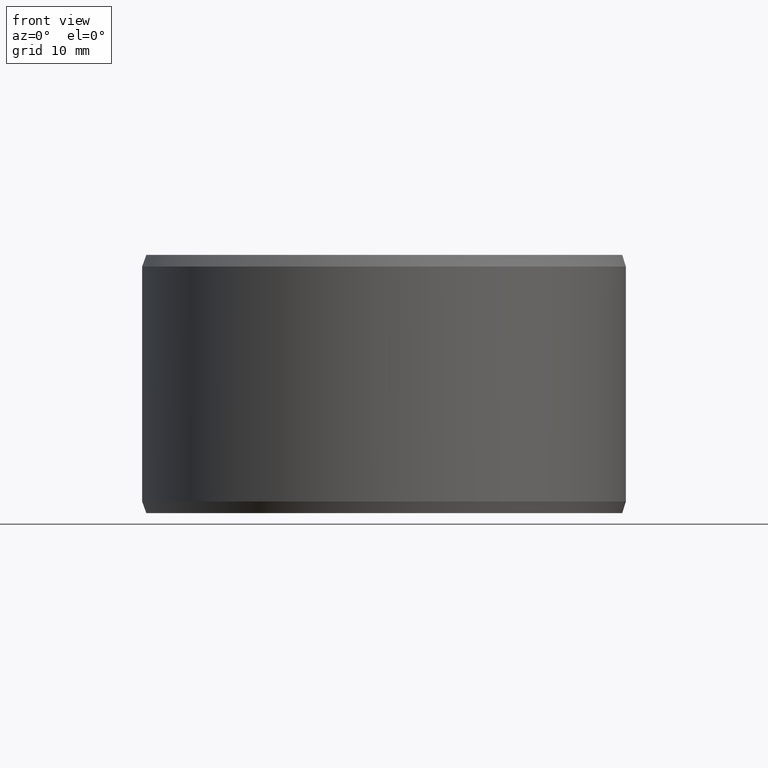
[diagram: clean part render]
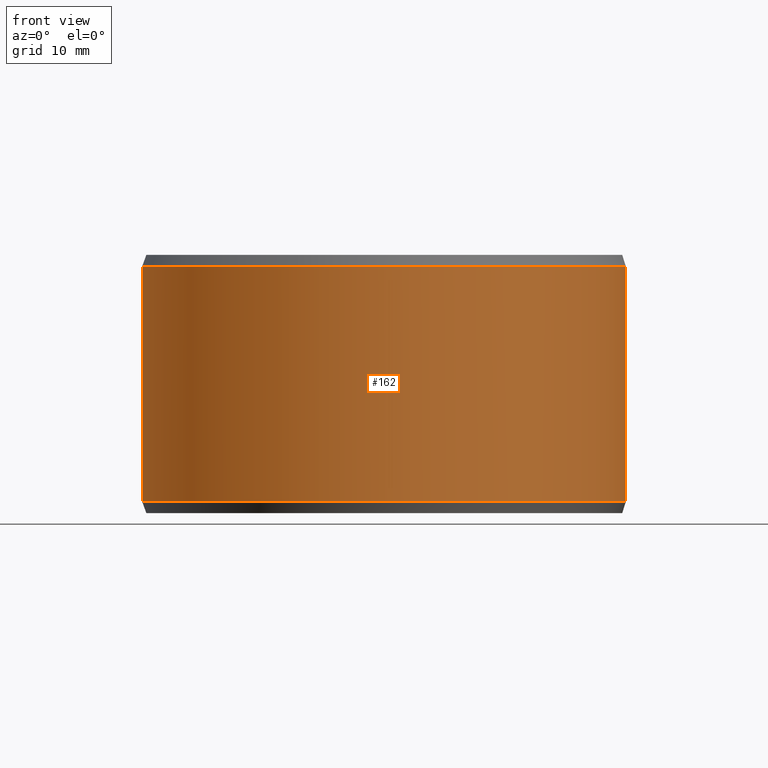
[diagram: same view with one face highlighted and labeled with its STEP entity id]
A machine part, front view. The second image highlights one B-rep face of the part: STEP entity #162.
In plain terms, the highlighted cylindrical surface (partial cylindrical patch) has radius 37.5 mm, axis along (-0, 0, -1).
Its self-contained STEP definition (entity closure, byte-faithful):
#162=ADVANCED_FACE('',(#185,#186),#187,.T.);
#185=FACE_OUTER_BOUND('',#211,.T.);
#186=FACE_BOUND('',#212,.T.);
#187=CYLINDRICAL_SURFACE('',#213,0.0375);
#211=EDGE_LOOP('',(#289,#290,#291,#292));
#212=EDGE_LOOP('',(#293));
#213=AXIS2_PLACEMENT_3D('',#294,#295,#296);
#289=ORIENTED_EDGE('',*,*,#314,.T.);
#290=ORIENTED_EDGE('',*,*,#323,.F.);
#291=ORIENTED_EDGE('',*,*,#309,.F.);
#292=ORIENTED_EDGE('',*,*,#324,.T.);
#293=ORIENTED_EDGE('',*,*,#327,.T.);
#294=CARTESIAN_POINT('',(-6.93889390390723E-018,-6.93889390390723E-018,0.0));
#295=DIRECTION('',(6.12323399573677E-017,0.0,-1.0));
#296=DIRECTION('',(-1.0,0.0,-6.12323399573677E-017));
#309=EDGE_CURVE('',#341,#342,#343,.T.);
#314=EDGE_CURVE('',#351,#349,#352,.T.);
#323=EDGE_CURVE('',#342,#349,#365,.T.);
#324=EDGE_CURVE('',#341,#351,#366,.T.);
#327=EDGE_CURVE('',#370,#370,#371,.T.);
#341=VERTEX_POINT('',#389);
#342=VERTEX_POINT('',#390);
#343=CIRCLE('',#391,0.0375);
#349=VERTEX_POINT('',#399);
#351=VERTEX_POINT('',#402);
#352=CIRCLE('',#403,0.0375);
#365=LINE('',#422,#423);
#366=LINE('',#424,#425);
#370=VERTEX_POINT('',#495);
#371=B_SPLINE_CURVE_WITH_KNOTS('',3,(#496,#497,#498,#499,#500,#501,#502,#503,#504,#505,#506,#507,#508,#509,#510,#511,#512,#513,#514,#515,#516,#517,#518,#519,#520,#521,#522,#523,#524,#525,#526,#527,#528,#529,#530,#531,#532,#533,#534,#535,#536,#537,#538,#539,#540,#541,#542,#543,#544,#545,#546,#547,#548,#549,#550,#551,#552,#553,#554,#555,#556,#557,#558,#559,#560,#561),.UNSPECIFIED.,.T.,.F.,(2,2,2,2,2,2,2,2,2,2,2,2,2,2,2,2,2,2,2,2,2,2,2,2,2,2,2,2,2,2,2,2,2,2,2),(-0.000782077601824386,0.0,0.000782077601824386,0.00156415520364877,0.00234623280547316,0.00312831040729754,0.00391038800912193,0.00469246561094632,0.0054745432127707,0.00625662081459509,0.00703869841641948,0.00782077601824386,0.00860285362006825,0.00938493122189263,0.010167008823717,0.0109490864255414,0.0117311640273658,0.0125132416291902,0.0132953192310146,0.014077396832839,0.0148594744346633,0.0156415520364877,0.0164236296383121,0.0172057072401365,0.0179877848419609,0.0187698624437853,0.0195519400456097,0.020334017647434,0.0211160952492584,0.0218981728510828,0.0226802504529072,0.0234623280547316,0.024244405656556,0.0250264832583804,0.0258085608602047),.UNSPECIFIED.);
#389=CARTESIAN_POINT('',(0.000654465241398127,0.0374942885683647,0.0018));
#390=CARTESIAN_POINT('',(-6.93889390390723E-018,0.0375,0.0018));
#391=AXIS2_PLACEMENT_3D('',#575,#576,#577);
#399=CARTESIAN_POINT('',(-8.67361737988404E-018,0.0375,0.0382));
#402=CARTESIAN_POINT('',(0.000654465241398125,0.0374942885683647,0.0382));
#403=AXIS2_PLACEMENT_3D('',#584,#585,#586);
#422=CARTESIAN_POINT('',(-6.93889390390723E-018,0.0375,0.0018));
#423=VECTOR('',#599,1.0);
#424=CARTESIAN_POINT('',(0.000654465241398127,0.0374942885683647,0.0018));
#425=VECTOR('',#600,1.0);
#495=CARTESIAN_POINT('',(0.0299002359972281,-0.022632407899074,0.02));
#496=CARTESIAN_POINT('',(0.0299002359972281,-0.022632407899074,0.0197355392661107));
#497=CARTESIAN_POINT('',(0.0299002359972281,-0.022632407899074,0.0202644607338893));
#498=CARTESIAN_POINT('',(0.0299160211264666,-0.0226115964737685,0.0205244642782662));
#499=CARTESIAN_POINT('',(0.0299775801417636,-0.0225299201946184,0.0210359332318231));
#500=CARTESIAN_POINT('',(0.03002410514492,-0.0224680504932056,0.021290063132947));
#501=CARTESIAN_POINT('',(0.030144588861717,-0.0223061414206155,0.0217743754194864));
#502=CARTESIAN_POINT('',(0.0302179669922118,-0.0222068840967412,0.0220040488024656));
#503=CARTESIAN_POINT('',(0.0303896221603777,-0.0219713926590459,0.0224387146687194));
#504=CARTESIAN_POINT('',(0.0304887148054793,-0.0218339749100416,0.022644371389618));
#505=CARTESIAN_POINT('',(0.0307025481173264,-0.0215322486044871,0.023013058555995));
#506=CARTESIAN_POINT('',(0.0308180810304827,-0.0213668862923477,0.0231785683168351));
#507=CARTESIAN_POINT('',(0.0310655030248537,-0.0210055342718132,0.0234709894344505));
#508=CARTESIAN_POINT('',(0.0311954386377228,-0.0208123184576056,0.0235951396881041));
#509=CARTESIAN_POINT('',(0.0314601560306079,-0.0204099626141382,0.0237946917517397));
#510=CARTESIAN_POINT('',(0.0315968955748299,-0.0201978436699623,0.0238715775624032));
#511=CARTESIAN_POINT('',(0.031872088993181,-0.0197607348571274,0.0239744020432396));
#512=CARTESIAN_POINT('',(0.0320081705176907,-0.0195395797414021,0.0239998561652057));
#513=CARTESIAN_POINT('',(0.0322771163523167,-0.0190920380352436,0.0240001426307614));
#514=CARTESIAN_POINT('',(0.0324113075264821,-0.0188632712763869,0.0239741387852273));
#515=CARTESIAN_POINT('',(0.0326664398176842,-0.0184179143352437,0.0238720276889507));
#516=CARTESIAN_POINT('',(0.0327881975796819,-0.0182000792372808,0.0237964774350061));
#517=CARTESIAN_POINT('',(0.0330207912922839,-0.0177745921809472,0.0235960673788763));
#518=CARTESIAN_POINT('',(0.0331310638938191,-0.017567859803304,0.0234709049632947));
#519=CARTESIAN_POINT('',(0.0333321650703368,-0.0171832437138246,0.023181505286208));
#520=CARTESIAN_POINT('',(0.0334243280810102,-0.0170029227069424,0.0230162445191473));
#521=CARTESIAN_POINT('',(0.0335925205995159,-0.0166681627066801,0.0226429876448468));
#522=CARTESIAN_POINT('',(0.033665793647002,-0.0165192460634599,0.0224411492827605));
#523=CARTESIAN_POINT('',(0.0337929142118309,-0.0162576167213862,0.0220082112397767));
#524=CARTESIAN_POINT('',(0.0338471853474452,-0.0161439842540904,0.0217743580475093));
#525=CARTESIAN_POINT('',(0.0339335823147639,-0.01596158434579,0.0212900138871279));
#526=CARTESIAN_POINT('',(0.0339658384664184,-0.0158925918319794,0.0210406942656988));
#527=CARTESIAN_POINT('',(0.0340094078230646,-0.0157991404003257,0.0205278447022407));
#528=CARTESIAN_POINT('',(0.0340204996564851,-0.0157751577847106,0.0202626057229153));
#529=CARTESIAN_POINT('',(0.0340205813053998,-0.0157749817005315,0.0197403504696506));
#530=CARTESIAN_POINT('',(0.0340099309829519,-0.015798013797005,0.0194806937339121));
#531=CARTESIAN_POINT('',(0.0339664673372392,-0.0158912473400856,0.0189643897107889));
#532=CARTESIAN_POINT('',(0.0339338026164628,-0.0159611106945182,0.0187118456145654));
#533=CARTESIAN_POINT('',(0.0338481317972984,-0.0161419945622725,0.0182303317355849));
#534=CARTESIAN_POINT('',(0.0337944806508309,-0.016254370774336,0.0179976735910189));
#535=CARTESIAN_POINT('',(0.0336663616397368,-0.0165180987305268,0.0175602442589953));
#536=CARTESIAN_POINT('',(0.033593097918821,-0.0166669701946158,0.0173588455058466));
#537=CARTESIAN_POINT('',(0.0334272688287402,-0.0169971121636247,0.0169897412871482));
#538=CARTESIAN_POINT('',(0.033333545239459,-0.0171805732019245,0.0168207311108838));
#539=CARTESIAN_POINT('',(0.0331319554129492,-0.017566185251559,0.0165301305726062));
#540=CARTESIAN_POINT('',(0.0330238099724525,-0.0177689798285239,0.0164070795686561));
#541=CARTESIAN_POINT('',(0.0327915198590766,-0.018194089550591,0.0162058538829034));
#542=CARTESIAN_POINT('',(0.0326674891220767,-0.0184160406827875,0.0161286068330482));
#543=CARTESIAN_POINT('',(0.0324132831764435,-0.0188598640953419,0.0160264399020468));
#544=CARTESIAN_POINT('',(0.0322818321227899,-0.0190841082786286,0.0160002503912524));
#545=CARTESIAN_POINT('',(0.0320095904560037,-0.0195372974802894,0.0159997531472802));
#546=CARTESIAN_POINT('',(0.031873136154321,-0.0197590141518492,0.0160255007177781));
#547=CARTESIAN_POINT('',(0.0316005856262196,-0.0201920389422372,0.0161267547101946));
#548=CARTESIAN_POINT('',(0.0314629002594837,-0.0204057521729656,0.0162034823453055));
#549=CARTESIAN_POINT('',(0.0311963467544304,-0.0208109769991716,0.0164039362694816));
#550=CARTESIAN_POINT('',(0.0310679432974478,-0.0210019128503182,0.0165266209454487));
#551=CARTESIAN_POINT('',(0.0308218783545254,-0.0213613964619505,0.0168164616461594));
#552=CARTESIAN_POINT('',(0.0307037436914409,-0.0215305449953822,0.0169851187404784));
#553=CARTESIAN_POINT('',(0.0304897584098194,-0.0218325187868629,0.0173535930521153));
#554=CARTESIAN_POINT('',(0.0303925321388726,-0.0219673754380237,0.0175546831881071));
#555=CARTESIAN_POINT('',(0.0302194391860867,-0.0222048888474113,0.0179914759736248));
#556=CARTESIAN_POINT('',(0.0301451331148508,-0.0223054039440214,0.0182240234056411));
#557=CARTESIAN_POINT('',(0.0300251715981821,-0.0224666233804228,0.0187050712649504));
#558=CARTESIAN_POINT('',(0.0299786378174176,-0.0225285148266769,0.0189567973226326));
#559=CARTESIAN_POINT('',(0.0299160240475686,-0.0226115946113714,0.0194740186718601));
#560=CARTESIAN_POINT('',(0.0299002359972281,-0.022632407899074,0.0197355392661107));
#561=CARTESIAN_POINT('',(0.0299002359972281,-0.022632407899074,0.0202644607338893));
#575=CARTESIAN_POINT('',(-6.93889390390723E-018,-6.93889390390723E-018,0.0018));
#576=DIRECTION('',(6.12323399573677E-017,0.0,-1.0));
#577=DIRECTION('',(-1.0,0.0,-6.12323399573677E-017));
#584=CARTESIAN_POINT('',(-8.67361737988404E-018,-6.93889390390723E-018,0.0382));
#585=DIRECTION('',(6.12323399573677E-017,0.0,-1.0));
#586=DIRECTION('',(-1.0,0.0,-6.12323399573677E-017));
#599=DIRECTION('',(-4.76572383510112E-017,0.0,1.0));
#600=DIRECTION('',(-4.76593059047383E-017,-2.36918190661555E-019,1.0));